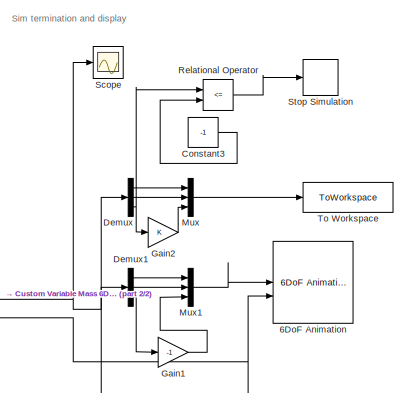
[diagram: root canvas - part 1/2, middle right region]
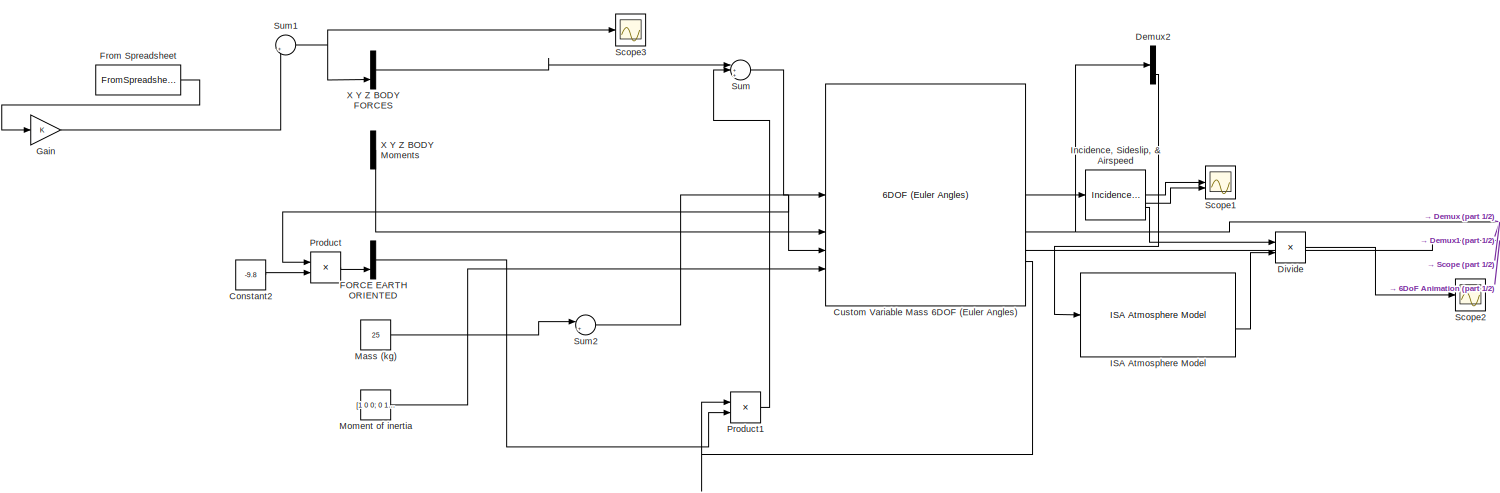
[diagram: root canvas - part 2/2, most of the canvas]
MODEL slx_228ee14523b2
KIND model
CONFIG AbsTol = auto
CONFIG EnableMultiTasking = off
CONFIG FixedStep = auto
CONFIG MaxStep = auto
CONFIG MinStep = auto
CONFIG RelTol = 1e-3
CONFIG SampleTimeConstraint = Unconstrained
CONFIG SolverName = VariableStepAuto
CONFIG StartTime = 0.0
CONFIG StopTime = 200
BLOCK [Reference] 6DoF Animation  REF=aerolibanim/6DoF Animation
  SourceBlock = aerolibanim/6DoF Animation
  SourceType = 6DoF_Animation
BLOCK [Constant] Constant2
  Value = -9.8
BLOCK [Constant] Constant3
  Value = -1
BLOCK [Reference] Custom Variable Mass 6DOF (Euler Angles)  REF=shared6dof/6DOF (Euler Angles)
  LibrarySourceBlock = aerolib6dof2/Custom Variable Mass 6DOF (Euler Angles)
  SourceBlock = shared6dof/6DOF (Euler Angles)
  SourceType = 6DOF EoM (Body Axis)
BLOCK [Demux] Demux
  Outputs = 3
BLOCK [Demux] Demux1
  Outputs = 3
BLOCK [Demux] Demux2
  Outputs = 3
BLOCK [Product] Divide
  Inputs = */
BLOCK [Mux] FORCE EARTH ORIENTED
  DisplayOption = bar
  Inputs = 3
BLOCK [FromSpreadsheet] From Spreadsheet
  ExtrapolationAfterLastDataPoint = Hold last value
  FileName = <userpath>\Documents\LERT\Simulations\ncurve.csv
  SheetName = ncurve
BLOCK [Gain] Gain
BLOCK [Gain] Gain1
  Gain = -1
BLOCK [Gain] Gain2
BLOCK [Reference] ISA Atmosphere Model  REF=aerolibatmos2/ISA Atmosphere Model
  SourceBlock = aerolibatmos2/ISA Atmosphere Model
  SourceType = International Standard Atmosphere Model
BLOCK [Reference] Incidence, Sideslip, & Airspeed  REF=aerolibasang/Incidence, Sideslip,
& Airspeed
  SourceBlock = aerolibasang/Incidence, Sideslip,\n& Airspeed
  SourceType = Incidence,Sideslip,&Airspeed
BLOCK [Constant] Mass (kg)
  Value = 25
BLOCK [Constant] Moment of inertia
  Value = [1 0 0; 0 1 0; 0 0 1]
BLOCK [Mux] Mux
  DisplayOption = bar
  Inputs = 3
BLOCK [Mux] Mux1
  DisplayOption = bar
  Inputs = 3
BLOCK [Product] Product
BLOCK [Product] Product1
  Multiplication = Matrix(*)
BLOCK [RelationalOperator] Relational Operator
  InputSameDT = off
  Operator = <=
  OutDataTypeStr = boolean
  RndMeth = Simplest
BLOCK [Scope] Scope
  Floating = off
  NumInputPorts = 1
  ScopeSpecificationString = Simulink.scopes.TimeScopeBlockCfg('CurrentConfiguration', extmgr.ConfigurationSet(extmgr.Configuration('Core','General UI',true),extmgr.Configuration('Core','Source UI',true),extmgr.Configuration('Sources','WiredSimulink',true),extmgr.Configuration('Visuals','Time Domain',true,'SerializedDisplays',{struct('MinYLimReal','-18115.09671','MaxYLimReal','24920.1174','YLabelReal','','MinYLimMag','   0.00...<+1602ch>
BLOCK [Scope] Scope1
  Floating = off
  NumInputPorts = 2
  ScopeSpecificationString = Simulink.scopes.TimeScopeBlockCfg('CurrentConfiguration', extmgr.ConfigurationSet(extmgr.Configuration('Core','General UI',true),extmgr.Configuration('Core','Source UI',true),extmgr.Configuration('Sources','WiredSimulink',true,'DataLoggingVariableName','ScopeData1'),extmgr.Configuration('Visuals','Time Domain',true,'SerializedDisplays',{struct('MinYLimReal','-1.96061','MaxYLimReal','1.96296','YLab...<+1573ch>
BLOCK [Scope] Scope2
  Floating = off
  NumInputPorts = 1
  ScopeSpecificationString = Simulink.scopes.TimeScopeBlockCfg('CurrentConfiguration', extmgr.ConfigurationSet(extmgr.Configuration('Core','General UI',true),extmgr.Configuration('Core','Source UI',true),extmgr.Configuration('Sources','WiredSimulink',true,'DataLoggingVariableName','ScopeData2'),extmgr.Configuration('Visuals','Time Domain',true,'SerializedDisplays',{struct('MinYLimReal','-0.14131','MaxYLimReal','1.27183','YLab...<+1509ch>
BLOCK [Scope] Scope3
  Floating = off
  NumInputPorts = 1
  ScopeSpecificationString = Simulink.scopes.TimeScopeBlockCfg('CurrentConfiguration', extmgr.ConfigurationSet(extmgr.Configuration('Core','General UI',true),extmgr.Configuration('Core','Source UI',true),extmgr.Configuration('Sources','WiredSimulink',true,'DataLoggingVariableName','ScopeData3'),extmgr.Configuration('Visuals','Time Domain',true,'SerializedDisplays',{struct('MinYLimReal','-196.325','MaxYLimReal','1766.925','YLa...<+1458ch>
BLOCK [Stop] Stop Simulation
BLOCK [Sum] Sum
  Inputs = |+++
BLOCK [Sum] Sum1
  Inputs = |++
BLOCK [Sum] Sum2
  Inputs = |++
BLOCK [ToWorkspace] To Workspace
  FixptAsFi = on
  MaxDataPoints = inf
  SampleTime = -1
  SaveFormat = Timeseries
  VariableName = simout
BLOCK [Mux] X Y Z BODY FORCES
  DisplayOption = bar
  Inputs = 3
BLOCK [Mux] X Y Z BODY Moments
  DisplayOption = bar
  Inputs = 3
ANNOTATION (root): Sim termination and display
LINE Constant2:1 -> Product:2
LINE Constant3:1 -> Relational Operator:2
NET Custom Variable Mass 6DOF (Euler Angles):2 -> Demux1:1, Demux2:1, Demux:1, Scope:1
LINE Custom Variable Mass 6DOF (Euler Angles):3 -> 6DoF Animation:2
LINE Custom Variable Mass 6DOF (Euler Angles):4 -> Product1:1
LINE Custom Variable Mass 6DOF (Euler Angles):5 -> Incidence, Sideslip, & Airspeed:1
LINE Demux1:1 -> Mux1:1
LINE Demux1:2 -> Mux1:2
LINE Demux1:3 -> Gain1:1
LINE Demux2:3 -> ISA Atmosphere Model:1
LINE Demux:1 -> Mux:1
LINE Demux:2 -> Mux:2
NET Demux:3 -> Gain2:1, Relational Operator:1
LINE Divide:1 -> Scope2:1
LINE FORCE EARTH ORIENTED:1 -> Product1:2
LINE From Spreadsheet:1 -> Gain:1
LINE Gain1:1 -> Mux1:3
LINE Gain2:1 -> Mux:3
LINE Gain:1 -> Sum1:2
LINE ISA Atmosphere Model:2 -> Divide:2
LINE Incidence, Sideslip, & Airspeed:1 -> Scope1:1
LINE Incidence, Sideslip, & Airspeed:2 -> Scope1:2
LINE Incidence, Sideslip, & Airspeed:3 -> Divide:1
LINE Mass (kg):1 -> Sum2:1
LINE Moment of inertia:1 -> Custom Variable Mass 6DOF (Euler Angles):5
LINE Mux1:1 -> 6DoF Animation:1
LINE Mux:1 -> To Workspace:1
LINE Product1:1 -> Sum:2
LINE Product:1 -> FORCE EARTH ORIENTED:3
LINE Relational Operator:1 -> Stop Simulation:1
NET Sum1:1 -> Scope3:1, X Y Z BODY FORCES:3
NET Sum2:1 -> Custom Variable Mass 6DOF (Euler Angles):3, Product:1
LINE Sum:1 -> Custom Variable Mass 6DOF (Euler Angles):1
LINE X Y Z BODY FORCES:1 -> Sum:1
LINE X Y Z BODY Moments:1 -> Custom Variable Mass 6DOF (Euler Angles):2
note: NET lines group one-source signal fan-out (src -> all destinations, sorted); 1:1 wires keep LINE
